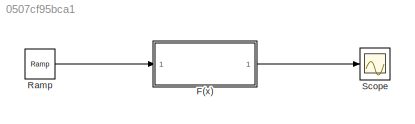
MODEL slx_0507cf95bca1
KIND model
CONFIG AbsTol = auto
CONFIG FixedStep = auto
CONFIG MaxStep = auto
CONFIG MinStep = auto
CONFIG RelTol = 1e-3
CONFIG SampleTimeConstraint = Unconstrained
CONFIG Solver = ode45
CONFIG SolverMode = Auto
CONFIG SolverName = ode45
CONFIG StartTime = 0.0
CONFIG StopTime = 20.0
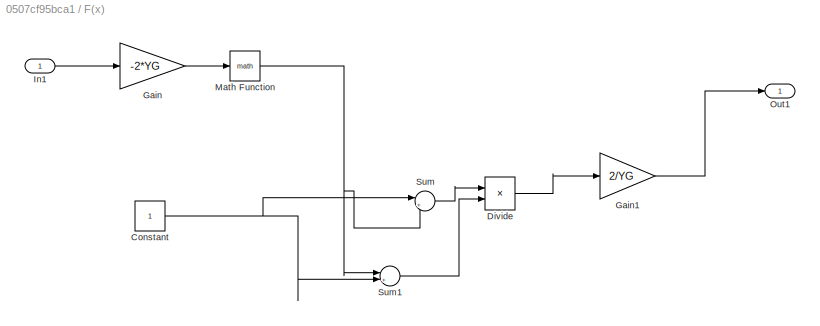
BLOCK [SubSystem] F(x)
  Ports = [1, 1]
  RequestExecContextInheritance = off
BLOCK [Constant] F(x)/Constant
BLOCK [Product] F(x)/Divide
  InputSameDT = off
  Inputs = */
  OutDataTypeStr = Inherit: Inherit via internal rule
  Ports = [2, 1]
  RndMeth = Floor
  SaturateOnIntegerOverflow = off
BLOCK [Gain] F(x)/Gain
  Gain = -2*YG
  OutDataTypeStr = Inherit: Inherit via internal rule
  ParamDataTypeStr = Inherit: Inherit via internal rule
  SaturateOnIntegerOverflow = off
BLOCK [Gain] F(x)/Gain1
  Gain = 2/YG
  OutDataTypeStr = Inherit: Inherit via internal rule
  ParamDataTypeStr = Inherit: Inherit via internal rule
  SaturateOnIntegerOverflow = off
BLOCK [Inport] F(x)/In1
  IconDisplay = Port number
BLOCK [Math] F(x)/Math Function
  Ports = [1, 1]
BLOCK [Outport] F(x)/Out1
  IconDisplay = Port number
BLOCK [Sum] F(x)/Sum
  IconShape = round
  InputSameDT = off
  Inputs = |+-
  OutDataTypeStr = Inherit: Inherit via internal rule
  Ports = [2, 1]
  SaturateOnIntegerOverflow = off
BLOCK [Sum] F(x)/Sum1
  IconShape = round
  InputSameDT = off
  Inputs = |++
  OutDataTypeStr = Inherit: Inherit via internal rule
  Ports = [2, 1]
  SaturateOnIntegerOverflow = off
BLOCK [Reference] Ramp  REF=simulink/Sources/Ramp
  Ports = [0, 1]
  SourceBlock = simulink/Sources/Ramp
  SourceType = Ramp
  VectorParams1D = on
  X0 = -10
  slope = 1
  start = 0
BLOCK [Scope] Scope
  Floating = off
  NumInputPorts = 1
  Ports = [1]
NET F(x)/Constant:1 -> F(x)/Sum1:2, F(x)/Sum:1
LINE F(x)/Divide:1 -> F(x)/Gain1:1
LINE F(x)/Gain1:1 -> F(x)/Out1:1
LINE F(x)/Gain:1 -> F(x)/Math Function:1
LINE F(x)/In1:1 -> F(x)/Gain:1
NET F(x)/Math Function:1 -> F(x)/Sum1:1, F(x)/Sum:2
LINE F(x)/Sum1:1 -> F(x)/Divide:2
LINE F(x)/Sum:1 -> F(x)/Divide:1
LINE F(x):1 -> Scope:1
LINE Ramp:1 -> F(x):1
note: NET lines group one-source signal fan-out (src -> all destinations, sorted); 1:1 wires keep LINE
